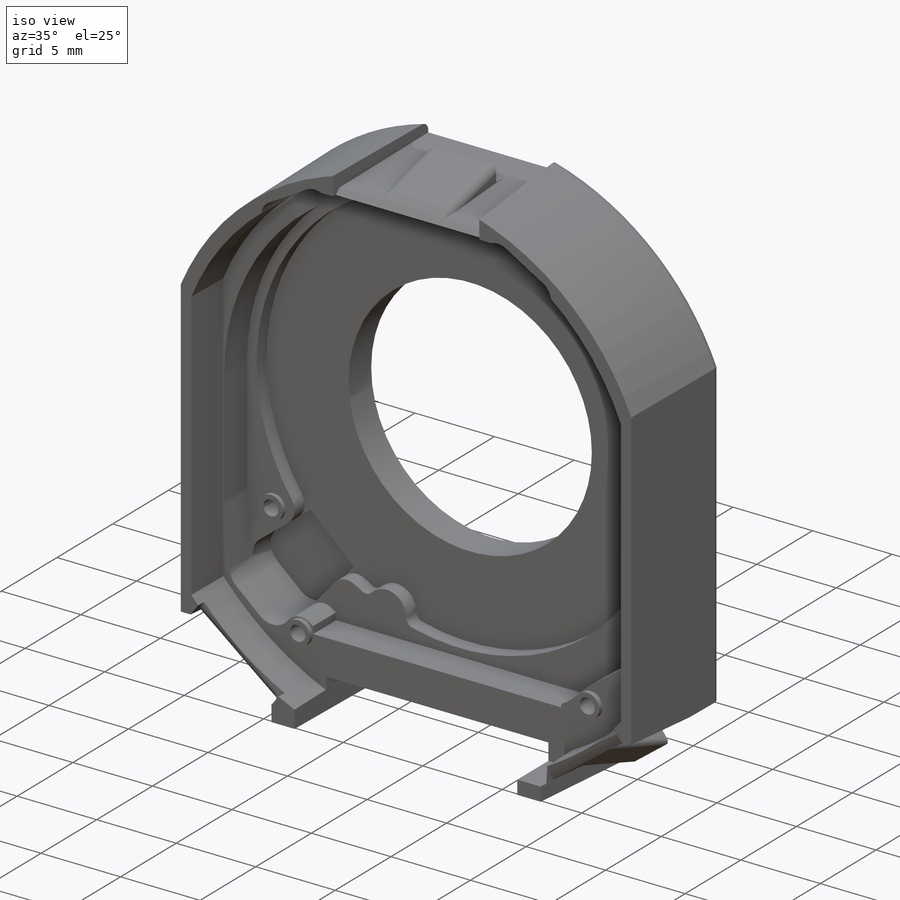
[diagram: iso view]
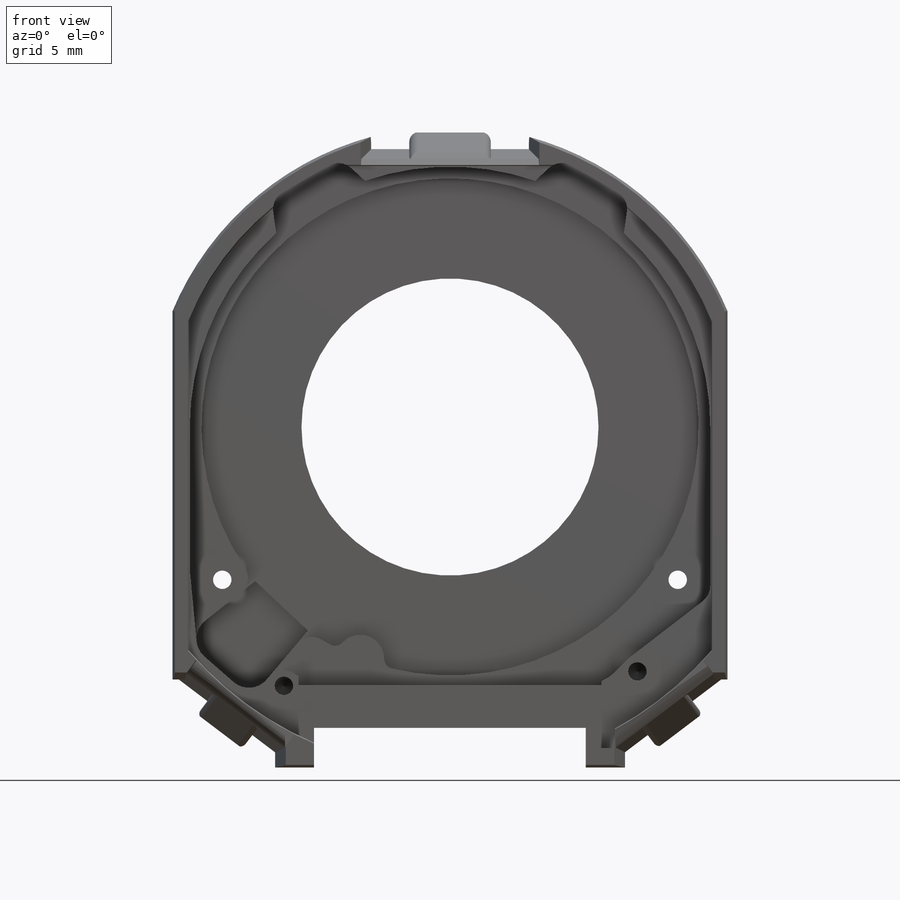
[diagram: front view]
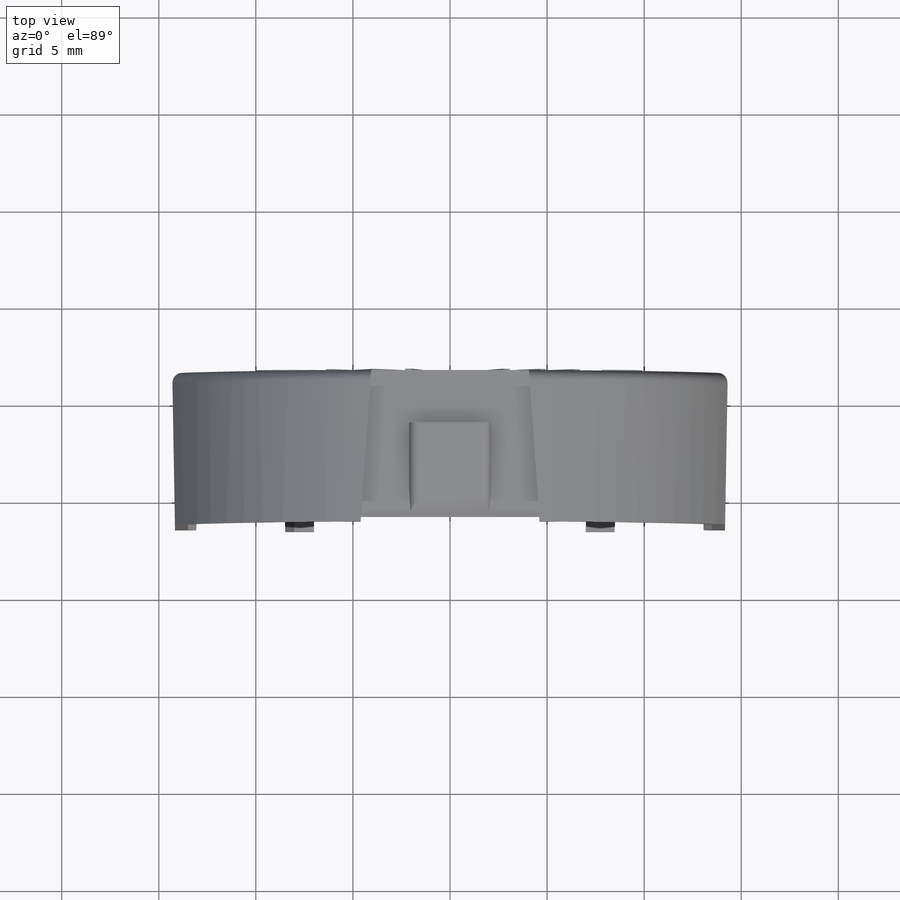
[diagram: top view]
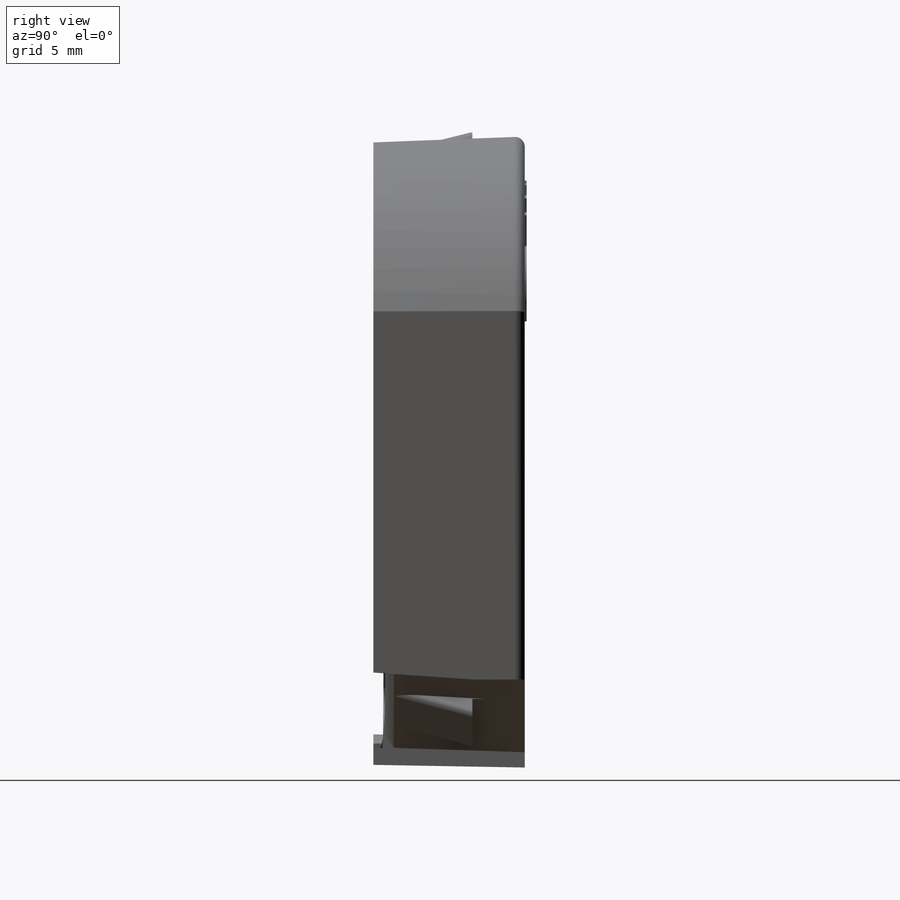
[diagram: right view]
SOLIDWORKS PART (.sldprt)
format: sldprt  version: not decoded by parser v0  size: 2,983,936 bytes
history: native  units: mm
features: sketch x42, cut_extrude x17, extrude x10, plane x7, fillet x7, hole x2, material x1 (+14 scaffold rows collapsed)
feature tree (100):
  scaffold x14  (default folders/planes/origin — collapsed)
  material  "Material <not specified>"
  plane  "Plane6"  Offset=3mm
  plane  "Plane2"  Offset=2mm
  plane  "Plane7"  Offset=3mm
  sketch  "36.8x36.8"  dims[D1=36.8mm D2=36.8mm D3=18.4mm D4=18.4mm]
  sketch  "Sketch149"
  sketch  "Sketch1"  dims[c1.D1=3.0mm c1.D5=15.3mm c1.D2=13.5mm c2.D1=3.65mm c2.D2=3.65mm c2.D3=15.261mm c2.D7=26.3mm c3.D2=3.65mm c3.D4=29.21mm c3.D6=14.15mm c4.D4=3.85mm c4.D3=15.5mm c5.D4=3.0mm c5.D6=20.0mm c5.D2=20.4mm c5.D3=10.541mm c6.D4=10.541mm c6.D5=10.541mm c6.D6=10.541mm c6.D7=13.5mm c6.D8=13.5mm c6.D9=13.5mm c6.D10=21.082mm c7.D10=~90.062128deg c8.D10=5.2mm c8.D4=14.15mm c8.D6=21.05mm c8.D1=17.54mm c8.D2=29.0mm c9.D6=21.3mm c10.D6=90.0deg c10.D2=28.7mm c10.D4=14.3mm c11.D2=14.3mm c11.D4=~19.755956mm c12.D4=~0.580045deg c13.D4=14.3mm c13.D3=0.65mm]
  extrude  "Main body"  Depth=6.5mm
  sketch  "Sketch120"
  sketch  "Sketch151"
  sketch  "Rotor OD"  dims[D1=26.0mm]
  sketch  "Sketch26"  dims[c1.D1=28.0mm c1.D2=2.5mm c1.D3=2.5mm c2.D1=14.2mm c2.D3=2.5mm c3.D1=3.0mm c3.D3=2.0mm c3.D8=0.7mm c3.D9=0.7mm c3.D5=1.0mm c3.D6=1.0mm c4.D5=2.0mm c4.D6=2.0mm c5.D5=26.0mm c5.D6=26.0mm c5.D7=~15.500207mm c5.D8=~15.500207mm c5.D9=35.5mm c5.D10=35.5mm c5.D3=18.85mm c5.D4=2.0mm c6.D7=35.5mm c6.D4=14.55mm c6.D6=14.55mm c7.D4=19.0mm c7.D2=13.5mm c8.D4=1.8mm c8.D5=~25.146236mm c9.D5=~35.049373deg c10.D5=8.55mm c10.D6=8.934mm c10.D7=1.0mm c11.D5=1.0mm c11.D1=1.0mm c11.D6=1.0mm c11.D7=~0.760793mm c11.D8=~0.760793mm c12.D1=1.0mm c12.D3=13.5mm c13.D1=13.5mm c13.D3=13.5mm c13.D5=16.54mm c14.D1=~172.453602deg c14.D5=0.154mm c14.D2=0.154mm c15.D1=0.254mm c15.D2=1.0mm c15.D3=1.0mm c16.D2=1.0mm c16.D3=1.0mm c16.D1=1.0mm c16.D4=1.0mm c17.D2=1.0mm c17.D1=1.0mm c17.D3=2.0mm c17.D4=2.0mm]
  cut_extrude  "Cut-transmitter"  Depth=2.8mm
  sketch  "Sketch27"  dims[c1.D2=26.8mm c1.D3=2.5mm c1.D4=2.54mm c1.D5=1.0mm c2.D4=28.0mm c2.D5=0.5mm c3.D4=0.5mm c3.D2=0.5mm c3.D3=1.0mm c4.D4=13.404mm c4.D5=1.0mm c4.D1=2.0mm c4.D2=2.0mm c5.D4=2.0mm c5.D3=0.5mm c5.D6=1.0mm c5.D2=~0.83954mm c6.D3=~1.591705mm c6.D1=13.3mm c6.D4=21.3mm c6.D5=~16.709486mm c6.D6=~2.281085mm c7.D6=90.0deg c8.D6=14.75mm c8.D2=13.25mm c8.D1=0.191mm c8.D3=0.191mm c8.D7=0.191mm c8.D8=0.191mm c9.D1=0.191mm c9.D3=0.191mm c9.D5=0.191mm c9.D7=0.191mm c10.D1=0.254mm c10.D2=0.254mm c10.D3=0.254mm c10.D5=0.3mm c10.D6=0.3mm c11.D1=0.254mm c11.D2=0.254mm c11.D6=0.3mm c11.D7=0.08mm]
  cut_extrude  "Cut-receiver"  Depth=2.06mm
  sketch  "Sketch115"  dims[c1.D1=1.0mm c1.D2=1.0mm c1.D3=14.85mm c1.D4=14.85mm c2.D1=1.0mm c2.D3=1.0mm]
  cut_extrude  "Cut-for rcvr tabs"  [1 undecoded]
  plane  "Plane10"
  sketch  "Sketch55"  dims[D1=14.0mm D2=25.6mm D3=18.46mm]
  cut_extrude  "pocket under rcvr electrodes"  Depth=0.9mm
  sketch  "Sketch56"  dims[D1=~1.014449mm]
  extrude  "Posts for transmitter grounding"  Depth=1.1mm
  sketch  "Sketch57"  dims[D1=~1.244272mm]
  extrude  "Shield posts through receiver"  Depth=0.25mm
  sketch  "Sketch105"  dims[D1=0.7mm]
  extrude  "Posts for rcvr fastening"  Depth=0.25mm
  sketch  "Sketch107"  dims[c1.D1=1.8mm c1.D2=1.8mm c1.D3=2.0mm c2.D1=~1.190238mm]
  cut_extrude  "Cut-under receiver terminals"  Depth=2.6mm
  sketch  "Circle for text"  dims[c1.D1=18.0mm c1.D2=18.0mm c1.D3=9.0mm c2.D1=10.0mm c2.D2=~16.057512mm c3.D2=36.0deg]
  sketch  "Sketch133"  dims[c1.D1=38.4mm c1.D3=41.0mm c1.D4=0.5mm c1.D5=0.5mm c1.D6=37.6mm c1.D7=0.5mm c2.D5=0.5mm c2.D7=0.5mm c2.D1=0.5mm c3.D7=0.5mm c3.D8=0.5mm c4.D7=0.5mm c4.D1=0.5mm c5.D7=18.8mm c5.D6=18.08mm c6.D7=~19.448325mm c6.D1=~19.977662mm c6.D2=4.5mm c7.D1=2.25mm c7.D4=~21.707149mm c8.D1=2.25mm c8.D2=2.55mm c8.D5=2.55mm c9.D2=14.17mm c9.D5=4.05mm c9.D7=4.05mm c10.D5=4.25mm c10.D8=~1.437193mm c10.D9=~1.437193mm c10.D1=~5.664907mm c10.D3=~24.250475mm c11.D3=~35.395917deg c12.D3=~24.250475mm c13.D3=~35.395917deg c13.D1=4.25mm c13.D4=0.1mm c13.D5=0.1mm c13.D8=0.3mm c13.D9=0.3mm c13.D2=0.09mm c13.D7=0.08mm c14.D1=0.1mm c14.D3=0.1mm c14.D4=0.1mm c14.D6=0.1mm c15.D1=0.1mm c15.D3=0.1mm]
  cut_extrude  "Cut-for snap ears"  Depth=10mm
  sketch  "Sketch175"  dims[D1=5.1mm]
  plane  "Plane11"
  sketch  "Sketch135"  dims[c1.D1=0.5mm c1.D2=1.85mm c1.D3=2.5mm c2.D2=1.85mm c2.D1=~5.150412mm c3.D2=0.4mm c3.D1=1.0mm c4.D2=5.05mm c4.D3=0.1mm c4.D4=1.0mm]
  extrude  "Latch-catch top"  Depth=2.1mm
  plane  "Plane8"
  plane  "Plane9"
  sketch  "Sketch152"  dims[c1.D1=0.5mm c1.D2=2.5mm c1.D3=1.85mm c2.D2=1.85mm c2.D3=2.5mm c2.D1=1.0mm c3.D2=0.1mm c3.D3=1.1mm c3.D4=5.05mm]
  sketch  "Sketch154"  dims[c1.D2=~0.500509mm c1.D3=0.5mm c1.D1=1.352mm c2.D2=2.5mm c2.D3=0.5mm c2.D1=1.35mm c3.D2=~3.579371mm c3.D1=2.5mm c4.D2=1.35mm c4.D1=0.1mm c5.D2=1.0mm c5.D3=5.05mm c5.D4=0.01mm]
  extrude  "Latch catch LR"  Depth=1.45mm
  extrude  "Latch catch LL"  Depth=1.45mm
  sketch  "Sketch222"  dims[D1=15.3mm D3=15.5mm D4=20.0mm D2=17.54mm]
  extrude  "Extrude7"  Depth=1.3mm
  sketch  "Sketch202"  dims[c1.D1=15.575mm c1.D2=1.075mm c2.D1=0.1mm]
  sketch  "Sketch203"
  cut_extrude  "Trim inside"  [1 undecoded]
  sketch  "Sketch211"
  extrude  "Bulge in receiver area"  [1 undecoded]
  fillet  "Fillet27"  Radius=0.5mm
  sketch  "Sketch212"  dims[c1.D1=~2.163322mm c1.D2=~1.442398mm c2.D1=0.1mm c2.D2=0.1mm]
  cut_extrude  "Shield posts removed"  [1 undecoded]
  hole  "Tap Drill for M1.2x0.25 Tap2"  Diameter=0.95mm Depth=3.19mm
  sketch  "3DSketch2"
  sketch  "Sketch217"  dims[hole-wizard template sketch: 59 standard entries collapsed; hole parameters kept: c18.Thru Hole Dia.=0.95mm c18.Thru Hole Depth=3.19mm]
  sketch  "Sketch223"  dims[D1=~0.855279mm]
  cut_extrude  "Extrude9"  Depth=10.5mm
  fillet  "Fillet31"  Radius=0.5mm
  sketch  "Draft35"  dims[D1=1.0deg]
  sketch  "Sketch226"
  cut_extrude  "Cut-Extrude1"  [1 undecoded]
  fillet  "Fillet41"  Radius=1mm
  fillet  "Fillet42"  Radius=1mm
  sketch  "Sketch230"
  cut_extrude  "Cut-Extrude4"  [1 undecoded]
  sketch  "Sketch231"
  cut_extrude  "Cut-Extrude5"  Depth=0.8mm
  hole  "Tap Drill for M1.2x0.25 Tap3"  Diameter=0.95mm Depth=3.1mm
  sketch  "Sketch235"
  sketch  "Sketch234"  dims[hole-wizard template sketch: 46 standard entries collapsed; hole parameters kept: c15.Hole Dia.=0.95mm c15.Hole Depth=3.1mm c15.D3=~14.816244mm c15.Drill Angle=118.0deg]
  sketch  "Sketch236"  dims[D1=8.5mm D2=4.0mm D3=8.5mm]
  extrude  "Boss-Extrude3"  Depth=0.1mm
  sketch  "Draft47"  dims[D1=4.0deg]
  sketch  "Sketch242"
  cut_extrude  "Cut-Extrude7"  Depth=10mm
  sketch  "Sketch243"  dims[c1.D1=~6.365297mm c2.D1=~1.340992deg c3.D1=0.471mm]
  cut_extrude  "Cut-Extrude8"  Depth=10mm
  sketch  "Draft49"  dims[D1=4.0deg]
  fillet  "Fillet66"  Radius=0.3mm
  fillet  "Fillet67"  Radius=0.3mm
  sketch  "Sketch244"
  cut_extrude  "Cut-Extrude9"  [1 undecoded]
  sketch  "Sketch246"
  cut_extrude  "Cut-Extrude10"  Depth=0.7mm
  fillet  "Fillet68"  Radius=0.5mm
  sketch  "Sketch254"  dims[D1=~3.479986mm D2=14.0mm D3=2.0mm D4=15.5mm]
  cut_extrude  "Cut-Extrude16"  Depth=10mm
decode coverage: 58 of 78 modeling features carry decoded parameters
note: ~ marks probable driven/reference dimensions
note: 7 parameter values undecoded
summary: no parameter record found for 7 features
note: suppression state not decoded; provenance and decode notes live in map.json
